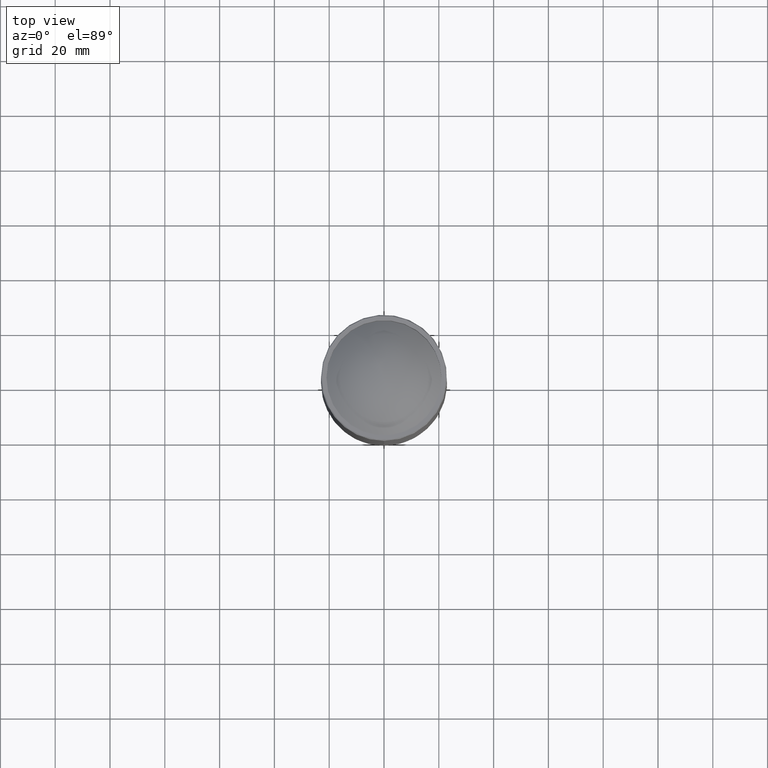
[diagram: clean part render]
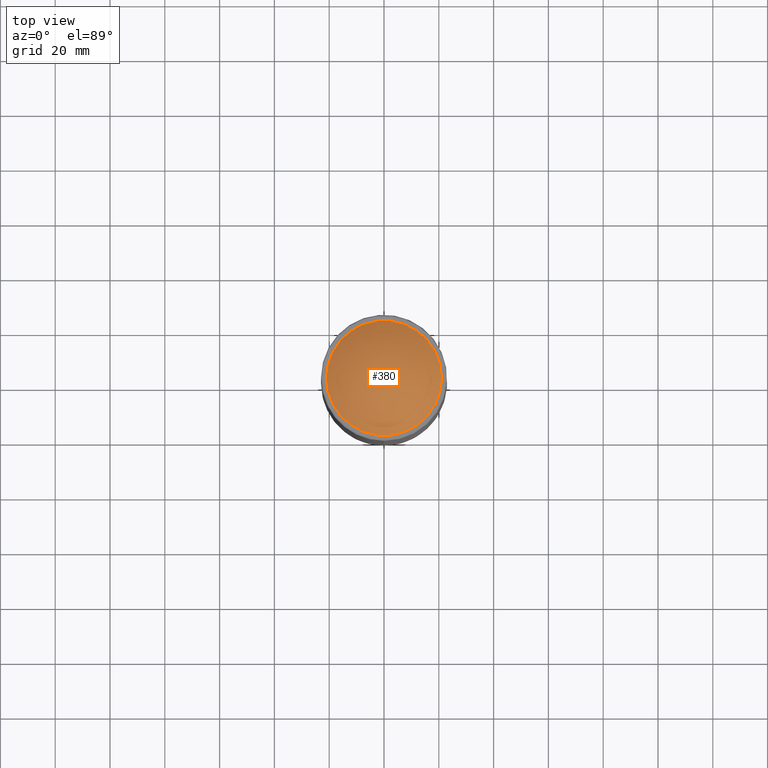
[diagram: same view with one face highlighted and labeled with its STEP entity id]
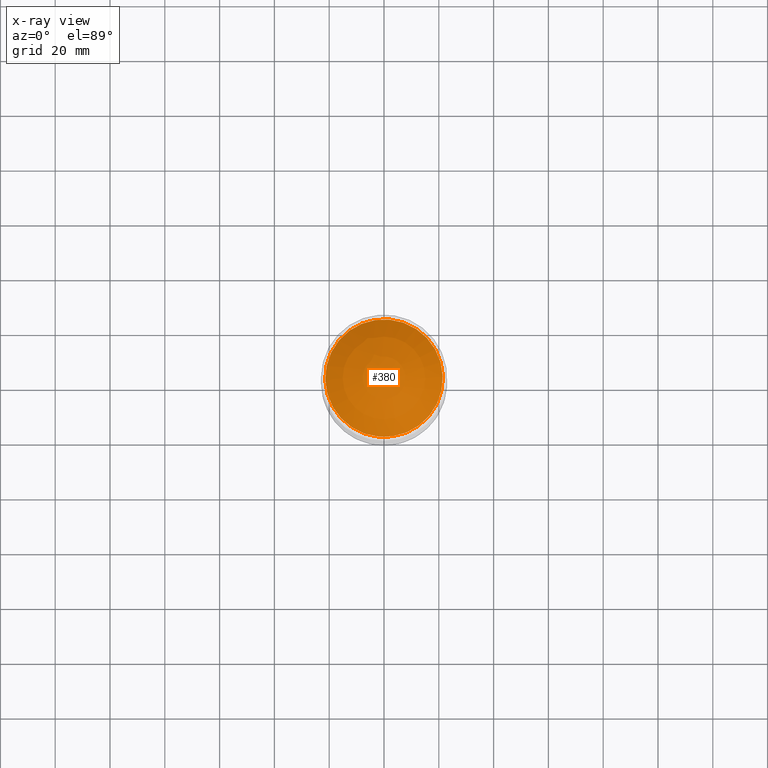
[diagram: x-ray of the same camera — body ghosted, the highlighted face saturated]
A machine part, top view. The second image highlights one B-rep face of the part: STEP entity #380.
The next image is the same camera in x-ray: the body ghosted, the highlighted face saturated — about 0% of this face is hidden behind the body in this view.
In plain terms, the highlighted spherical surface has radius 31.2095 mm.
Its self-contained STEP definition (entity closure, byte-faithful):
#58 = DIRECTION ( 'NONE',  ( 0.3830490080632379390, -0.9237280213470682178, 0.000000000000000000 ) ) ;
#82 = FACE_OUTER_BOUND ( 'NONE', #394, .T. ) ;
#83 = CIRCLE ( 'NONE', #826, 21.45211006975307555 ) ;
#122 = AXIS2_PLACEMENT_3D ( 'NONE', #1320, #664, #1211 ) ;
#138 = DIRECTION ( 'NONE',  ( -1.232595164407830946E-32, -1.318609258053555361E-16, -1.000000000000000000 ) ) ;
#317 = EDGE_CURVE ( 'NONE', #685, #685, #83, .T. ) ;
#380 = ADVANCED_FACE ( 'NONE', ( #82 ), #896, .T. ) ;
#394 = EDGE_LOOP ( 'NONE', ( #556 ) ) ;
#556 = ORIENTED_EDGE ( 'NONE', *, *, #317, .F. ) ;
#664 = DIRECTION ( 'NONE',  ( 4.665676044949140993E-17, 1.934749774458438248E-17, 1.000000000000000000 ) ) ;
#685 = VERTEX_POINT ( 'NONE', #1215 ) ;
#826 = AXIS2_PLACEMENT_3D ( 'NONE', #1284, #138, #58 ) ;
#896 = SPHERICAL_SURFACE ( 'NONE', #122, 31.20951493132240273 ) ;
#1211 = DIRECTION ( 'NONE',  ( -0.3830490080632378835, 0.9237280213470681067, 0.000000000000000000 ) ) ;
#1215 = CARTESIAN_POINT ( 'NONE',  ( 8.217209483082285715, -19.81591518845250022, -403.0000000000000000 ) ) ;
#1284 = CARTESIAN_POINT ( 'NONE',  ( -2.775557561562891351E-14, 2.341876692568689577E-14, -403.0000000000000000 ) ) ;
#1320 = CARTESIAN_POINT ( 'NONE',  ( -2.775557561562891351E-14, 1.778091562876227272E-14, -425.6680567275546991 ) ) ;